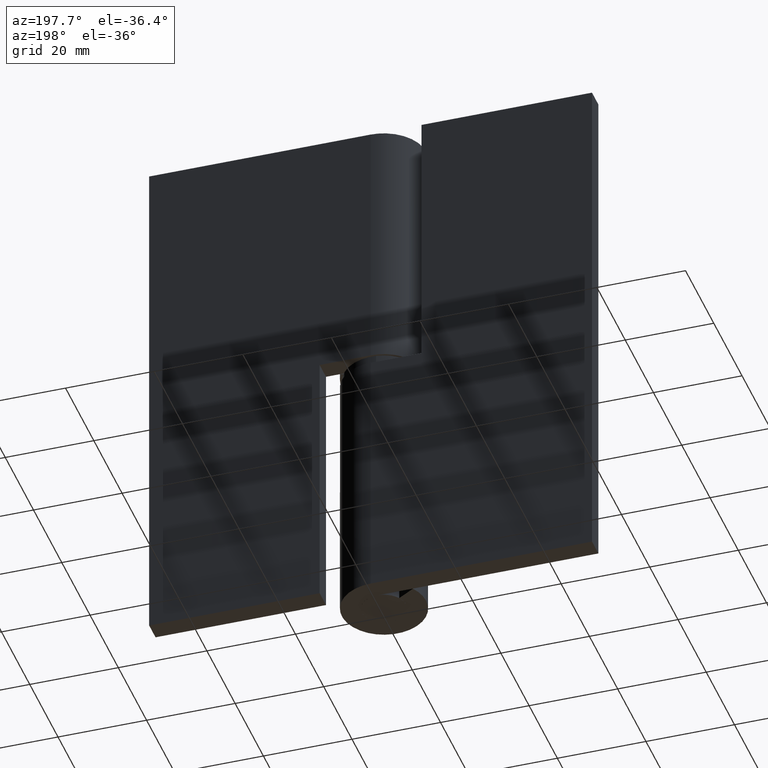
[diagram: clean part render]
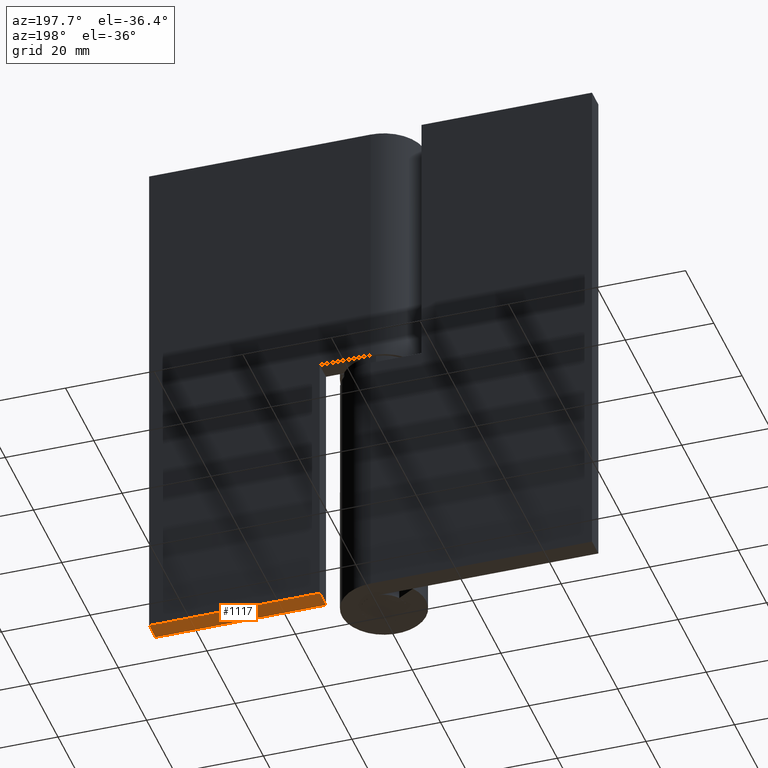
[diagram: same view with one face highlighted and labeled with its STEP entity id]
A machine part, auxiliary view. The second image highlights one B-rep face of the part: STEP entity #1117.
In plain terms, the highlighted face is a freeform B-spline surface patch.
Its self-contained STEP definition (entity closure, byte-faithful):
#900=CARTESIAN_POINT('',(11.500000000000000,9.500000000000000,0.0));
#901=VERTEX_POINT('',#900);
#907=CARTESIAN_POINT('',(11.500000000000000,5.0,0.0));
#908=VERTEX_POINT('',#907);
#909=CARTESIAN_POINT('',(11.500000000000000,9.500000000000000,0.0));
#910=CARTESIAN_POINT('',(11.500000000000000,5.0,0.0));
#911=QUASI_UNIFORM_CURVE('',1,(#909,#910),.UNSPECIFIED.,.F.,.U.);
#912=EDGE_CURVE('',#901,#908,#911,.T.);
#1076=CARTESIAN_POINT('',(50.0,5.0,0.0));
#1077=VERTEX_POINT('',#1076);
#1083=CARTESIAN_POINT('',(50.0,9.500000000000000,0.0));
#1084=VERTEX_POINT('',#1083);
#1085=CARTESIAN_POINT('',(50.0,5.0,0.0));
#1086=CARTESIAN_POINT('',(50.0,9.500000000000000,0.0));
#1087=QUASI_UNIFORM_CURVE('',1,(#1085,#1086),.UNSPECIFIED.,.F.,.U.);
#1088=EDGE_CURVE('',#1077,#1084,#1087,.T.);
#1098=CARTESIAN_POINT('',(9.576925074620473,4.775225008721874,0.0));
#1099=CARTESIAN_POINT('',(51.923075958029997,4.775225008721874,0.0));
#1100=CARTESIAN_POINT('',(9.576925074620473,9.724775111977532,0.0));
#1101=CARTESIAN_POINT('',(51.923075958029997,9.724775111977532,0.0));
#1102=B_SPLINE_SURFACE_WITH_KNOTS('',1,1,((#1098,#1100),(#1099,#1101)),.UNSPECIFIED.,.F.,.F.,.U.,(2,2),(2,2),(0.0,42.346150883409521),(0.0,4.949550103255659),.UNSPECIFIED.);
#1103=CARTESIAN_POINT('',(11.500000000000000,5.0,0.0));
#1104=CARTESIAN_POINT('',(50.0,5.0,0.0));
#1105=QUASI_UNIFORM_CURVE('',1,(#1103,#1104),.UNSPECIFIED.,.F.,.U.);
#1106=EDGE_CURVE('',#908,#1077,#1105,.T.);
#1107=ORIENTED_EDGE('',*,*,#1106,.F.);
#1108=ORIENTED_EDGE('',*,*,#912,.F.);
#1109=CARTESIAN_POINT('',(50.0,9.500000000000000,0.0));
#1110=CARTESIAN_POINT('',(11.500000000000000,9.500000000000000,0.0));
#1111=QUASI_UNIFORM_CURVE('',1,(#1109,#1110),.UNSPECIFIED.,.F.,.U.);
#1112=EDGE_CURVE('',#1084,#901,#1111,.T.);
#1113=ORIENTED_EDGE('',*,*,#1112,.F.);
#1114=ORIENTED_EDGE('',*,*,#1088,.F.);
#1115=EDGE_LOOP('',(#1107,#1108,#1113,#1114));
#1116=FACE_OUTER_BOUND('',#1115,.T.);
#1117=ADVANCED_FACE('',(#1116),#1102,.F.);